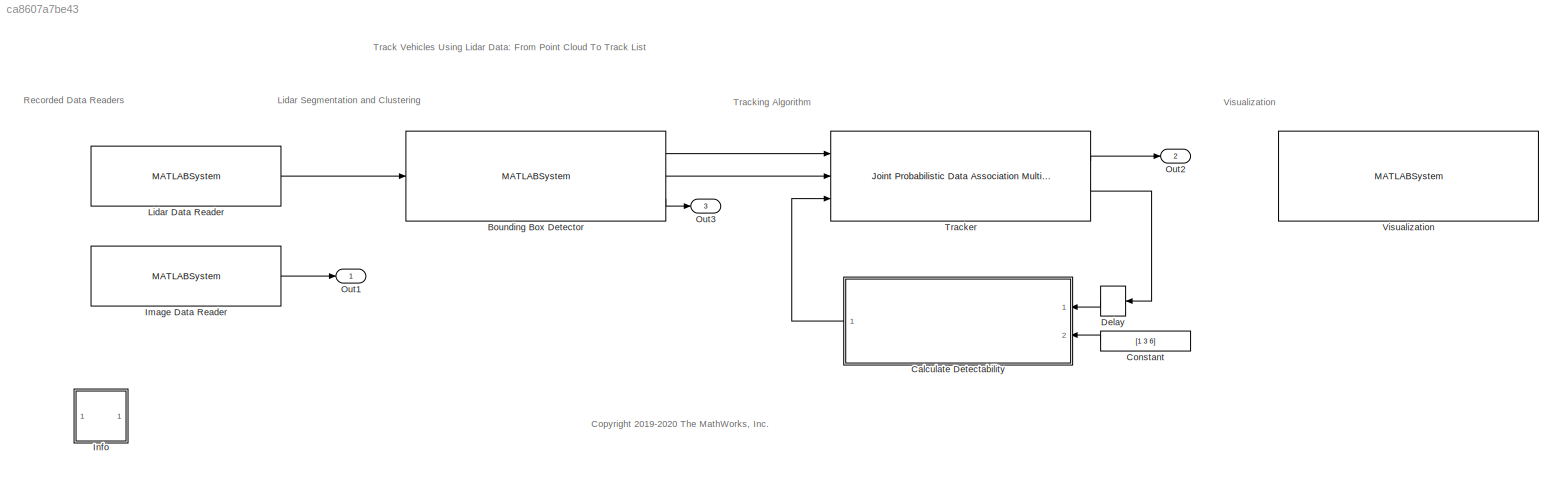
MODEL slx_ca8607a7be43
KIND model
CONFIG AbsTol = auto
CONFIG EnableMultiTasking = off
CONFIG FixedStep = 0.1
CONFIG MaxStep = auto
CONFIG MinStep = auto
CONFIG PreLoadFcn = helperCreateDetectorBus 
CONFIG RelTol = 1e-3
CONFIG SampleTimeConstraint = Unconstrained
CONFIG SolverName = FixedStepAuto
CONFIG StartTime = 0.0
CONFIG StopTime = 34.9
BLOCK [MATLABSystem] Bounding Box Detector
  DetectionBusName = detectionBus
  EgoVehicleRadius = 3
  GroundMaxAngularDistance = 5
  GroundMaxDistance = 0.3
  GroundReferenceVector = [ 0, 0, 1 ]
  MaskDisplay = disp(['Helper' char(10) 'Bounding Box Detector']);\nport_label('input',1,['Point Cloud' char(10) 'Locations']);\nport_label('output',1,'Detections');\nport_label('output',2,'Current Time');\nport_label('output',3,'Segmentation Information');
  MaskType = HelperBoundingBoxDetectorBlock
  MaxZDistanceCluster = 3
  MeasurementNoise = blkdiag( 0.25*eye( 3 ), 25, eye( 3 ) )
  MeasurementParameters = {  }
  MinDetectionsPerCluster = 1
  MinZDistanceCluster = -3
  NumLidarPoints = 55000
  Ports = [1, 3]
  SegmentationBusName = segmentationBus
  SegmentationMinDistance = 1.8
  SimulateUsing = Interpreted execution
  System = HelperBoundingBoxDetectorBlock
  XLimits = [ -70, 70 ]
  YLimits = [ -6, 6 ]
  ZLimits = [ -2, 10 ]
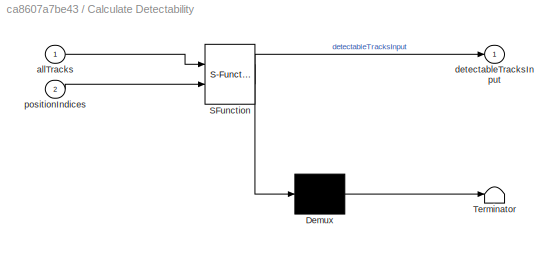
BLOCK [SubSystem] Calculate Detectability
  ErrorFcn = Stateflow.Translate.translate
  NameLocation = top
  PermitHierarchicalResolution = ExplicitOnly
  Ports = [2, 1]
  RequestExecContextInheritance = off
  SFBlockType = MATLAB Function
  TreatAsAtomicUnit = on
BLOCK [Demux] Calculate Detectability/ Demux 
  Outputs = 1
  Ports = [1, 1]
BLOCK [S-Function] Calculate Detectability/ SFunction 
  EnableBusSupport = on
  FunctionName = sf_sfun
  PortCounts = [2 2]
  Ports = [2, 2]
  SFcnIsStateOwnerBlock = off
  SFunctionDeploymentMode = off
  Tag = Stateflow S-Function 2
BLOCK [Terminator] Calculate Detectability/ Terminator 
BLOCK [Inport] Calculate Detectability/allTracks
BLOCK [Outport] Calculate Detectability/detectableTracksInput
  VectorParamsAs1DForOutWhenUnconnected = off
BLOCK [Inport] Calculate Detectability/positionIndices
  Port = 2
BLOCK [Constant] Constant
  NameLocation = top
  Value = [1 3 6]
BLOCK [Delay] Delay
  DelayLength = 1
  InputPortMap = u0
  NameLocation = top
  Ports = [1, 1]
BLOCK [MATLABSystem] Image Data Reader
  ImageDataVariableName = allImageData
  ImageFile = imageData_35seconds
  ImageSize = [ 144, 192, 3 ]
  MaskDisplay = disp(['Helper' char(10) 'Image Data Reader']);\nport_label('output',1,'Image');
  MaskType = HelperImageDataReader
  Ports = [0, 1]
  System = HelperImageDataReader
  TimeStep = 0.1
BLOCK [SubSystem] Info
  OpenFcn = helpview(fullfile(matlabroot,'help','fusion','helptargets.map'),'TrackVehiclesUsingLidarDataInSimulinkExample');
  Ports = []
  RequestExecContextInheritance = off
BLOCK [MATLABSystem] Lidar Data Reader
  LidarDataVariableName = currentLidarData
  LidarFile = { 'lidarData_1', 'lidarData_2', 'lidarData_3', 'lidarData_4', 'lidarData_5' }
  MaskDisplay = disp(['Helper' char(10) 'Lidar Data Reader']);\nport_label('output',1,['Point Cloud' char(10) 'Locations']);
  MaskType = HelperLidarDataReader
  NumLidarPoints = 55000
  Ports = [0, 1]
  System = HelperLidarDataReader
  TimeStep = 0.1
BLOCK [Outport] Out1
BLOCK [Outport] Out2
  Port = 2
BLOCK [Outport] Out3
  Port = 3
BLOCK [Reference] Tracker  REF=motalgorithmslib/Joint Probabilistic Data Association Multi Object Tracker
  Ports = [3, 2]
  SourceBlock = motalgorithmslib/Joint Probabilistic Data Association Multi Object Tracker
  SourceProductBaseCode = TF
  SourceType = trackerJPDA
BLOCK [MATLABSystem] Visualization
  DetectorBlockName = Bounding Box Detector
  DimensionIndex = [9 10 11]
  ImageDataReaderBlockName = Image Data Reader
  LidarDataReaderBlockName = Lidar Data Reader
  MaskDisplay = disp(['Helper' char(10) 'Lidar Example Display']);
  MaskType = HelperLidarExampleDisplayBlock
  MovieName = myMovie
  Ports = []
  PositionIndex = [ 1, 3, 6 ]
  RecordGIF = true
  SimulateUsing = Interpreted execution
  System = HelperLidarExampleDisplayBlock
  TrackerBlockName = Tracker
  VelocityIndex = [ 2, 4, 7 ]
  YawIndex = 8
ANNOTATION (root): Track Vehicles Using Lidar Data: From Point Cloud To Track List
ANNOTATION (root): <copyright redacted>
ANNOTATION (root): Lidar Segmentation and Clustering
ANNOTATION (root): Recorded Data Readers
ANNOTATION (root): Tracking Algorithm
ANNOTATION (root): Visualization
LINE Bounding Box Detector:1 -> Tracker:1
LINE Bounding Box Detector:2 -> Tracker:2
LINE Bounding Box Detector:3 -> Out3:1
LINE Calculate Detectability:1 -> Tracker:3
LINE Constant:1 -> Calculate Detectability:2
LINE Delay:1 -> Calculate Detectability:1
LINE Image Data Reader:1 -> Out1:1
LINE Lidar Data Reader:1 -> Bounding Box Detector:1
LINE Tracker:1 -> Out2:1
LINE Tracker:2 -> Delay:1
CHART Calculate Detectability states=1 transitions=1
  STATE_LABEL 'eML_blk_kernel()'
  STATE_LABEL 'SCRIPT:\nfunction detectableTracksInput = CalculateDetectability(allTracks, positionIndices)\n% This function calculates the probability of detection for each track. The\n% helperCalcDetectability function is used to compute the probability after\n% extracting the tracks from the bus.\ntracks = allTracks.Tracks(1:allTracks.NumTracks);\ndetectableTracksInput = helperCalcDetectability(tracks, positionIndi...<+10ch>'
CHART  states=0 transitions=0
